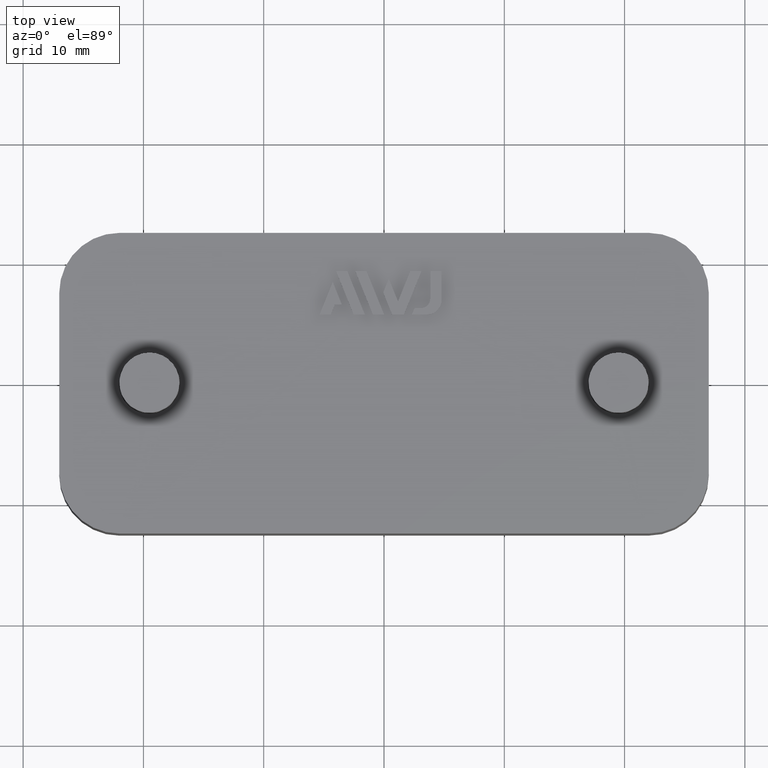
[diagram: clean part render]
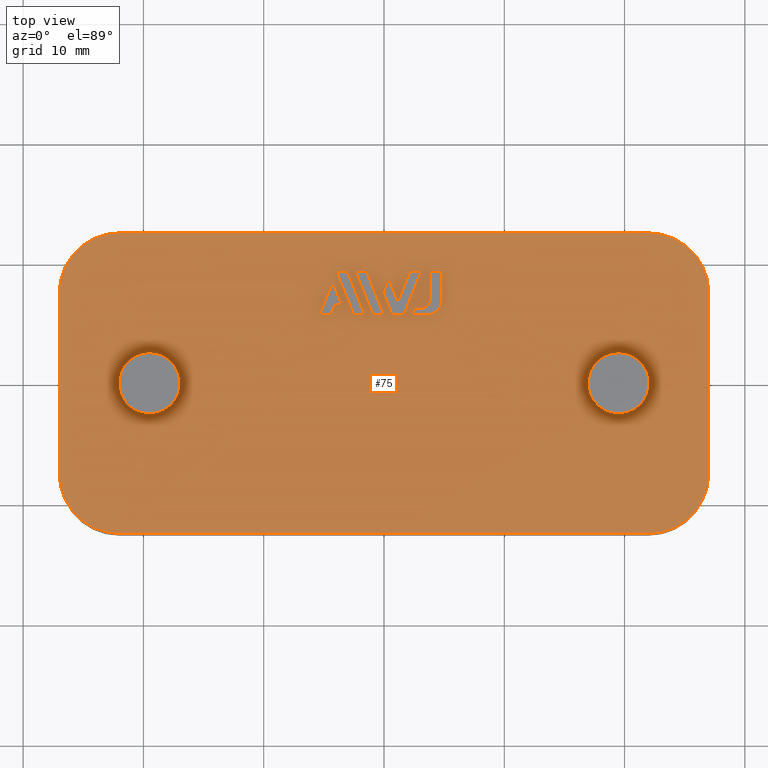
[diagram: same view with one face highlighted and labeled with its STEP entity id]
A machine part, top view. The second image highlights one B-rep face of the part: STEP entity #75.
In plain terms, the highlighted planar face has unit normal (0, -0, -1).
Its self-contained STEP definition (entity closure, byte-faithful):
#75 = ADVANCED_FACE( '', ( #378, #379, #380, #381, #382, #383, #384, #385 ), #386, .F. );
#378 = FACE_BOUND( '', #1030, .T. );
#379 = FACE_BOUND( '', #1031, .T. );
#380 = FACE_OUTER_BOUND( '', #1032, .T. );
#381 = FACE_BOUND( '', #1033, .T. );
#382 = FACE_BOUND( '', #1034, .T. );
#383 = FACE_BOUND( '', #1035, .T. );
#384 = FACE_BOUND( '', #1036, .T. );
#385 = FACE_BOUND( '', #1037, .T. );
#386 = PLANE( '', #1038 );
#1030 = EDGE_LOOP( '', ( #1682, #1683, #1684, #1685, #1686, #1687, #1688 ) );
#1031 = EDGE_LOOP( '', ( #1689, #1690, #1691, #1692 ) );
#1032 = EDGE_LOOP( '', ( #1693, #1694, #1695, #1696, #1697, #1698, #1699, #1700 ) );
#1033 = EDGE_LOOP( '', ( #1701 ) );
#1034 = EDGE_LOOP( '', ( #1702 ) );
#1035 = EDGE_LOOP( '', ( #1703, #1704, #1705, #1706, #1707 ) );
#1036 = EDGE_LOOP( '', ( #1708, #1709, #1710, #1711 ) );
#1037 = EDGE_LOOP( '', ( #1712, #1713, #1714, #1715, #1716, #1717, #1718, #1719 ) );
#1038 = AXIS2_PLACEMENT_3D( '', #1720, #1721, #1722 );
#1682 = ORIENTED_EDGE( '', *, *, #4108, .F. );
#1683 = ORIENTED_EDGE( '', *, *, #4109, .F. );
#1684 = ORIENTED_EDGE( '', *, *, #4110, .F. );
#1685 = ORIENTED_EDGE( '', *, *, #4111, .F. );
#1686 = ORIENTED_EDGE( '', *, *, #4112, .F. );
#1687 = ORIENTED_EDGE( '', *, *, #4113, .F. );
#1688 = ORIENTED_EDGE( '', *, *, #4114, .F. );
#1689 = ORIENTED_EDGE( '', *, *, #4115, .F. );
#1690 = ORIENTED_EDGE( '', *, *, #4116, .F. );
#1691 = ORIENTED_EDGE( '', *, *, #4117, .F. );
#1692 = ORIENTED_EDGE( '', *, *, #4118, .F. );
#1693 = ORIENTED_EDGE( '', *, *, #4119, .F. );
#1694 = ORIENTED_EDGE( '', *, *, #4120, .F. );
#1695 = ORIENTED_EDGE( '', *, *, #4121, .F. );
#1696 = ORIENTED_EDGE( '', *, *, #4122, .F. );
#1697 = ORIENTED_EDGE( '', *, *, #4123, .F. );
#1698 = ORIENTED_EDGE( '', *, *, #4124, .F. );
#1699 = ORIENTED_EDGE( '', *, *, #4125, .F. );
#1700 = ORIENTED_EDGE( '', *, *, #4126, .F. );
#1701 = ORIENTED_EDGE( '', *, *, #4127, .T. );
#1702 = ORIENTED_EDGE( '', *, *, #4128, .T. );
#1703 = ORIENTED_EDGE( '', *, *, #4129, .F. );
#1704 = ORIENTED_EDGE( '', *, *, #4130, .F. );
#1705 = ORIENTED_EDGE( '', *, *, #4131, .F. );
#1706 = ORIENTED_EDGE( '', *, *, #4132, .F. );
#1707 = ORIENTED_EDGE( '', *, *, #4133, .F. );
#1708 = ORIENTED_EDGE( '', *, *, #4134, .F. );
#1709 = ORIENTED_EDGE( '', *, *, #4135, .F. );
#1710 = ORIENTED_EDGE( '', *, *, #4136, .F. );
#1711 = ORIENTED_EDGE( '', *, *, #4137, .F. );
#1712 = ORIENTED_EDGE( '', *, *, #4138, .F. );
#1713 = ORIENTED_EDGE( '', *, *, #4139, .F. );
#1714 = ORIENTED_EDGE( '', *, *, #4140, .F. );
#1715 = ORIENTED_EDGE( '', *, *, #4141, .F. );
#1716 = ORIENTED_EDGE( '', *, *, #4142, .F. );
#1717 = ORIENTED_EDGE( '', *, *, #4143, .F. );
#1718 = ORIENTED_EDGE( '', *, *, #4144, .F. );
#1719 = ORIENTED_EDGE( '', *, *, #4145, .F. );
#1720 = CARTESIAN_POINT( '', ( 22.0000000000000, 7.50000000000001, 10.0000000000000 ) );
#1721 = DIRECTION( '', ( 2.61147382207352E-017, -6.12303176911189E-017, -1.00000000000000 ) );
#1722 = DIRECTION( '', ( 1.00000000000000, -6.42490176287706E-017, 2.61147382207352E-017 ) );
#4108 = EDGE_CURVE( '', #4868, #4869, #4870, .T. );
#4109 = EDGE_CURVE( '', #4871, #4868, #4872, .T. );
#4110 = EDGE_CURVE( '', #4873, #4871, #4874, .T. );
#4111 = EDGE_CURVE( '', #4875, #4873, #4876, .T. );
#4112 = EDGE_CURVE( '', #4877, #4875, #4878, .T. );
#4113 = EDGE_CURVE( '', #4879, #4877, #4880, .T. );
#4114 = EDGE_CURVE( '', #4869, #4879, #4881, .T. );
#4115 = EDGE_CURVE( '', #4882, #4883, #4884, .T. );
#4116 = EDGE_CURVE( '', #4885, #4882, #4886, .T. );
#4117 = EDGE_CURVE( '', #4887, #4885, #4888, .T. );
#4118 = EDGE_CURVE( '', #4883, #4887, #4889, .T. );
#4119 = EDGE_CURVE( '', #4890, #4891, #4892, .T. );
#4120 = EDGE_CURVE( '', #4893, #4890, #4894, .T. );
#4121 = EDGE_CURVE( '', #4895, #4893, #4896, .T. );
#4122 = EDGE_CURVE( '', #4897, #4895, #4898, .T. );
#4123 = EDGE_CURVE( '', #4899, #4897, #4900, .T. );
#4124 = EDGE_CURVE( '', #4901, #4899, #4902, .T. );
#4125 = EDGE_CURVE( '', #4903, #4901, #4904, .T. );
#4126 = EDGE_CURVE( '', #4891, #4903, #4905, .T. );
#4127 = EDGE_CURVE( '', #4906, #4906, #4907, .T. );
#4128 = EDGE_CURVE( '', #4908, #4908, #4909, .T. );
#4129 = EDGE_CURVE( '', #4910, #4911, #4912, .T. );
#4130 = EDGE_CURVE( '', #4913, #4910, #4914, .T. );
#4131 = EDGE_CURVE( '', #4915, #4913, #4916, .T. );
#4132 = EDGE_CURVE( '', #4917, #4915, #4918, .T. );
#4133 = EDGE_CURVE( '', #4911, #4917, #4919, .T. );
#4134 = EDGE_CURVE( '', #4920, #4921, #4922, .T. );
#4135 = EDGE_CURVE( '', #4923, #4920, #4924, .T. );
#4136 = EDGE_CURVE( '', #4925, #4923, #4926, .T. );
#4137 = EDGE_CURVE( '', #4921, #4925, #4927, .T. );
#4138 = EDGE_CURVE( '', #4928, #4929, #4930, .T. );
#4139 = EDGE_CURVE( '', #4931, #4928, #4932, .T. );
#4140 = EDGE_CURVE( '', #4933, #4931, #4934, .T. );
#4141 = EDGE_CURVE( '', #4935, #4933, #4936, .T. );
#4142 = EDGE_CURVE( '', #4937, #4935, #4938, .T. );
#4143 = EDGE_CURVE( '', #4939, #4937, #4940, .T. );
#4144 = EDGE_CURVE( '', #4941, #4939, #4942, .T. );
#4145 = EDGE_CURVE( '', #4929, #4941, #4943, .T. );
#4868 = VERTEX_POINT( '', #6136 );
#4869 = VERTEX_POINT( '', #6137 );
#4870 = LINE( '', #6138, #6139 );
#4871 = VERTEX_POINT( '', #6140 );
#4872 = LINE( '', #6141, #6142 );
#4873 = VERTEX_POINT( '', #6143 );
#4874 = LINE( '', #6144, #6145 );
#4875 = VERTEX_POINT( '', #6146 );
#4876 = LINE( '', #6147, #6148 );
#4877 = VERTEX_POINT( '', #6149 );
#4878 = LINE( '', #6150, #6151 );
#4879 = VERTEX_POINT( '', #6152 );
#4880 = LINE( '', #6153, #6154 );
#4881 = LINE( '', #6155, #6156 );
#4882 = VERTEX_POINT( '', #6157 );
#4883 = VERTEX_POINT( '', #6158 );
#4884 = LINE( '', #6159, #6160 );
#4885 = VERTEX_POINT( '', #6161 );
#4886 = LINE( '', #6162, #6163 );
#4887 = VERTEX_POINT( '', #6164 );
#4888 = LINE( '', #6165, #6166 );
#4889 = LINE( '', #6167, #6168 );
#4890 = VERTEX_POINT( '', #6169 );
#4891 = VERTEX_POINT( '', #6170 );
#4892 = CIRCLE( '', #6171, 4.99999999999999 );
#4893 = VERTEX_POINT( '', #6172 );
#4894 = LINE( '', #6173, #6174 );
#4895 = VERTEX_POINT( '', #6175 );
#4896 = CIRCLE( '', #6176, 5.00000000000000 );
#4897 = VERTEX_POINT( '', #6177 );
#4898 = LINE( '', #6178, #6179 );
#4899 = VERTEX_POINT( '', #6180 );
#4900 = CIRCLE( '', #6181, 5.00000000000000 );
#4901 = VERTEX_POINT( '', #6182 );
#4902 = LINE( '', #6183, #6184 );
#4903 = VERTEX_POINT( '', #6185 );
#4904 = CIRCLE( '', #6186, 4.99999999999999 );
#4905 = LINE( '', #6187, #6188 );
#4906 = VERTEX_POINT( '', #6189 );
#4907 = CIRCLE( '', #6190, 2.54363766232054 );
#4908 = VERTEX_POINT( '', #6191 );
#4909 = CIRCLE( '', #6192, 2.54363766232055 );
#4910 = VERTEX_POINT( '', #6193 );
#4911 = VERTEX_POINT( '', #6194 );
#4912 = LINE( '', #6195, #6196 );
#4913 = VERTEX_POINT( '', #6197 );
#4914 = LINE( '', #6198, #6199 );
#4915 = VERTEX_POINT( '', #6200 );
#4916 = LINE( '', #6201, #6202 );
#4917 = VERTEX_POINT( '', #6203 );
#4918 = LINE( '', #6204, #6205 );
#4919 = LINE( '', #6206, #6207 );
#4920 = VERTEX_POINT( '', #6208 );
#4921 = VERTEX_POINT( '', #6209 );
#4922 = LINE( '', #6210, #6211 );
#4923 = VERTEX_POINT( '', #6212 );
#4924 = LINE( '', #6213, #6214 );
#4925 = VERTEX_POINT( '', #6215 );
#4926 = LINE( '', #6216, #6217 );
#4927 = LINE( '', #6218, #6219 );
#4928 = VERTEX_POINT( '', #6220 );
#4929 = VERTEX_POINT( '', #6221 );
#4930 = CIRCLE( '', #6222, 1.20000000000000 );
#4931 = VERTEX_POINT( '', #6223 );
#4932 = LINE( '', #6224, #6225 );
#4933 = VERTEX_POINT( '', #6226 );
#4934 = LINE( '', #6227, #6228 );
#4935 = VERTEX_POINT( '', #6229 );
#4936 = LINE( '', #6230, #6231 );
#4937 = VERTEX_POINT( '', #6232 );
#4938 = CIRCLE( '', #6233, 0.799999999999999 );
#4939 = VERTEX_POINT( '', #6234 );
#4940 = LINE( '', #6235, #6236 );
#4941 = VERTEX_POINT( '', #6237 );
#4942 = LINE( '', #6238, #6239 );
#4943 = LINE( '', #6240, #6241 );
#6136 = CARTESIAN_POINT( '', ( 1.65153815900078, 5.70000000000002, 9.99999999999998 ) );
#6137 = CARTESIAN_POINT( '', ( 3.10489558569051, 9.29736617046472, 9.99999999999997 ) );
#6138 = CARTESIAN_POINT( '', ( 1.65153815900078, 5.70000000000002, 9.99999999999998 ) );
#6139 = VECTOR( '', #8148, 1000.00000000000 );
#6140 = CARTESIAN_POINT( '', ( 0.668868987414745, 5.70000000000002, 9.99999999999999 ) );
#6141 = CARTESIAN_POINT( '', ( 0.668868987414744, 5.70000000000002, 9.99999999999999 ) );
#6142 = VECTOR( '', #8149, 1000.00000000000 );
#6143 = CARTESIAN_POINT( '', ( -0.0717422425350299, 7.53275704409054, 9.99999999999999 ) );
#6144 = CARTESIAN_POINT( '', ( -0.0717422425350316, 7.53275704409054, 9.99999999999999 ) );
#6145 = VECTOR( '', #8150, 1000.00000000000 );
#6146 = CARTESIAN_POINT( '', ( 0.393055647481169, 8.68337374758958, 9.99999999999999 ) );
#6147 = CARTESIAN_POINT( '', ( 0.393055647481170, 8.68337374758958, 9.99999999999999 ) );
#6148 = VECTOR( '', #8151, 1000.00000000000 );
#6149 = CARTESIAN_POINT( '', ( 1.16010139340522, 6.78495716450337, 9.99999999999998 ) );
#6150 = CARTESIAN_POINT( '', ( 1.16010139340522, 6.78495716450338, 9.99999999999999 ) );
#6151 = VECTOR( '', #8152, 1000.00000000000 );
#6152 = CARTESIAN_POINT( '', ( 2.17529980565812, 9.29736617046472, 9.99999999999997 ) );
#6153 = CARTESIAN_POINT( '', ( 2.17529980565812, 9.29736617046472, 9.99999999999998 ) );
#6154 = VECTOR( '', #8153, 1000.00000000000 );
#6155 = CARTESIAN_POINT( '', ( 3.10489558569051, 9.29736617046472, 9.99999999999997 ) );
#6156 = VECTOR( '', #8154, 1000.00000000000 );
#6157 = CARTESIAN_POINT( '', ( -1.59847678860040, 5.70000000000002, 9.99999999999999 ) );
#6158 = CARTESIAN_POINT( '', ( -3.05206261720169, 9.29736617046472, 10.0000000000000 ) );
#6159 = CARTESIAN_POINT( '', ( -1.59847678860040, 5.70000000000002, 9.99999999999999 ) );
#6160 = VECTOR( '', #8155, 1000.00000000000 );
#6161 = CARTESIAN_POINT( '', ( -2.52799443113674, 5.70000000000002, 10.0000000000000 ) );
#6162 = CARTESIAN_POINT( '', ( -2.52799443113674, 5.70000000000002, 9.99999999999999 ) );
#6163 = VECTOR( '', #8156, 1000.00000000000 );
#6164 = CARTESIAN_POINT( '', ( -3.98137590013295, 9.29736617046472, 10.0000000000000 ) );
#6165 = CARTESIAN_POINT( '', ( -3.98137590013295, 9.29736617046472, 10.0000000000000 ) );
#6166 = VECTOR( '', #8157, 1000.00000000000 );
#6167 = CARTESIAN_POINT( '', ( -3.05206261720169, 9.29736617046472, 10.0000000000000 ) );
#6168 = VECTOR( '', #8158, 1000.00000000000 );
#6169 = CARTESIAN_POINT( '', ( 22.0000000000000, 12.5000000000000, 10.0000000000000 ) );
#6170 = CARTESIAN_POINT( '', ( 27.0000000000000, 7.49999999999999, 10.0000000000000 ) );
#6171 = AXIS2_PLACEMENT_3D( '', #8159, #8160, #8161 );
#6172 = CARTESIAN_POINT( '', ( -22.0000000000000, 12.5000000000000, 10.0000000000000 ) );
#6173 = CARTESIAN_POINT( '', ( -22.0000000000000, 12.5000000000000, 10.0000000000000 ) );
#6174 = VECTOR( '', #8162, 1000.00000000000 );
#6175 = CARTESIAN_POINT( '', ( -27.0000000000000, 7.50000000000000, 10.0000000000000 ) );
#6176 = AXIS2_PLACEMENT_3D( '', #8163, #8164, #8165 );
#6177 = CARTESIAN_POINT( '', ( -27.0000000000000, -7.50000000000000, 10.0000000000000 ) );
#6178 = CARTESIAN_POINT( '', ( -27.0000000000000, -7.50000000000002, 10.0000000000000 ) );
#6179 = VECTOR( '', #8166, 1000.00000000000 );
#6180 = CARTESIAN_POINT( '', ( -22.0000000000000, -12.5000000000000, 10.0000000000000 ) );
#6181 = AXIS2_PLACEMENT_3D( '', #8167, #8168, #8169 );
#6182 = CARTESIAN_POINT( '', ( 22.0000000000000, -12.5000000000000, 10.0000000000000 ) );
#6183 = CARTESIAN_POINT( '', ( 22.0000000000000, -12.5000000000000, 10.0000000000000 ) );
#6184 = VECTOR( '', #8170, 1000.00000000000 );
#6185 = CARTESIAN_POINT( '', ( 27.0000000000000, -7.50000000000001, 10.0000000000000 ) );
#6186 = AXIS2_PLACEMENT_3D( '', #8171, #8172, #8173 );
#6187 = CARTESIAN_POINT( '', ( 27.0000000000000, 7.49999999999999, 10.0000000000000 ) );
#6188 = VECTOR( '', #8174, 1000.00000000000 );
#6189 = CARTESIAN_POINT( '', ( -19.5000000000000, 2.54363766232054, 10.0000000000000 ) );
#6190 = AXIS2_PLACEMENT_3D( '', #8175, #8176, #8177 );
#6191 = CARTESIAN_POINT( '', ( 19.5000000000000, 2.54363766232055, 10.0000000000000 ) );
#6192 = AXIS2_PLACEMENT_3D( '', #8178, #8179, #8180 );
#6193 = CARTESIAN_POINT( '', ( -4.42597825270631, 5.70000000000002, 10.0000000000000 ) );
#6194 = CARTESIAN_POINT( '', ( -4.09004712542058, 6.53085402732085, 10.0000000000000 ) );
#6195 = CARTESIAN_POINT( '', ( -4.42597825270631, 5.70000000000002, 10.0000000000000 ) );
#6196 = VECTOR( '', #8181, 1000.00000000000 );
#6197 = CARTESIAN_POINT( '', ( -5.35529153563757, 5.70000000000002, 10.0000000000000 ) );
#6198 = CARTESIAN_POINT( '', ( -5.35529153563757, 5.70000000000002, 10.0000000000000 ) );
#6199 = VECTOR( '', #8182, 1000.00000000000 );
#6200 = CARTESIAN_POINT( '', ( -4.26568819540705, 8.39721019471655, 10.0000000000000 ) );
#6201 = CARTESIAN_POINT( '', ( -4.26568819540705, 8.39721019471655, 10.0000000000000 ) );
#6202 = VECTOR( '', #8183, 1000.00000000000 );
#6203 = CARTESIAN_POINT( '', ( -3.51197991900253, 6.53085402732085, 10.0000000000000 ) );
#6204 = CARTESIAN_POINT( '', ( -3.51197991900253, 6.53085402732085, 10.0000000000000 ) );
#6205 = VECTOR( '', #8184, 1000.00000000000 );
#6206 = CARTESIAN_POINT( '', ( -4.09004712542058, 6.53085402732085, 10.0000000000000 ) );
#6207 = VECTOR( '', #8185, 1000.00000000000 );
#6208 = CARTESIAN_POINT( '', ( -1.04083408558608E-014, 5.70000000000002, 9.99999999999999 ) );
#6209 = CARTESIAN_POINT( '', ( -1.45358582860130, 9.29736617046472, 10.0000000000000 ) );
#6210 = CARTESIAN_POINT( '', ( -1.04083408558608E-014, 5.70000000000002, 9.99999999999999 ) );
#6211 = VECTOR( '', #8186, 1000.00000000000 );
#6212 = CARTESIAN_POINT( '', ( -0.929583758879166, 5.70000000000002, 9.99999999999999 ) );
#6213 = CARTESIAN_POINT( '', ( -0.929583758879167, 5.70000000000002, 9.99999999999999 ) );
#6214 = VECTOR( '', #8187, 1000.00000000000 );
#6215 = CARTESIAN_POINT( '', ( -2.38316958748045, 9.29736617046472, 10.0000000000000 ) );
#6216 = CARTESIAN_POINT( '', ( -2.38316958748045, 9.29736617046472, 10.0000000000000 ) );
#6217 = VECTOR( '', #8188, 1000.00000000000 );
#6218 = CARTESIAN_POINT( '', ( -1.45358582860130, 9.29736617046472, 10.0000000000000 ) );
#6219 = VECTOR( '', #8189, 1000.00000000000 );
#6220 = CARTESIAN_POINT( '', ( 3.58288028181883, 5.70000000000002, 9.99999999999997 ) );
#6221 = CARTESIAN_POINT( '', ( 4.78288028181883, 6.90000000000003, 9.99999999999997 ) );
#6222 = AXIS2_PLACEMENT_3D( '', #8190, #8191, #8192 );
#6223 = CARTESIAN_POINT( '', ( 2.32040714641553, 5.70000000000003, 9.99999999999998 ) );
#6224 = CARTESIAN_POINT( '', ( 2.32040714641553, 5.70000000000002, 9.99999999999998 ) );
#6225 = VECTOR( '', #8193, 1000.00000000000 );
#6226 = CARTESIAN_POINT( '', ( 2.53176335265060, 6.22312496744037, 9.99999999999998 ) );
#6227 = CARTESIAN_POINT( '', ( 2.53176335265060, 6.22312496744038, 9.99999999999998 ) );
#6228 = VECTOR( '', #8194, 1000.00000000000 );
#6229 = CARTESIAN_POINT( '', ( 3.04274195062396, 6.22312496744037, 9.99999999999998 ) );
#6230 = CARTESIAN_POINT( '', ( 3.04274195062396, 6.22312496744037, 9.99999999999998 ) );
#6231 = VECTOR( '', #8195, 1000.00000000000 );
#6232 = CARTESIAN_POINT( '', ( 3.84274195062396, 7.02312496744037, 9.99999999999997 ) );
#6233 = AXIS2_PLACEMENT_3D( '', #8196, #8197, #8198 );
#6234 = CARTESIAN_POINT( '', ( 3.84274195062396, 9.29736617046472, 9.99999999999998 ) );
#6235 = CARTESIAN_POINT( '', ( 3.84274195062396, 9.29736617046472, 9.99999999999997 ) );
#6236 = VECTOR( '', #8199, 1000.00000000000 );
#6237 = CARTESIAN_POINT( '', ( 4.78288028181883, 9.29736617046472, 9.99999999999997 ) );
#6238 = CARTESIAN_POINT( '', ( 4.78288028181883, 9.29736617046472, 9.99999999999997 ) );
#6239 = VECTOR( '', #8200, 1000.00000000000 );
#6240 = CARTESIAN_POINT( '', ( 4.78288028181883, 6.90000000000003, 9.99999999999997 ) );
#6241 = VECTOR( '', #8201, 1000.00000000000 );
#8148 = DIRECTION( '', ( 0.374590451773198, 0.927190376050330, 8.29390871736282E-016 ) );
#8149 = DIRECTION( '', ( 1.00000000000000, -2.27738354346373E-031, -3.71937241115124E-015 ) );
#8150 = DIRECTION( '', ( 0.374662832411421, -0.927161130553612, -3.61607275949142E-015 ) );
#8151 = DIRECTION( '', ( -0.374550179126525, -0.927206645422846, -8.29579661146845E-016 ) );
#8152 = DIRECTION( '', ( -0.374621565025663, 0.927177805503196, 3.61595924339183E-015 ) );
#8153 = DIRECTION( '', ( -0.374644435760503, -0.927168564368796, -8.29137798890870E-016 ) );
#8154 = DIRECTION( '', ( -1.00000000000000, 2.79533177046626E-031, 3.71937241115124E-015 ) );
#8155 = DIRECTION( '', ( -0.374641058409019, 0.927169929060563, 3.61601286537797E-015 ) );
#8156 = DIRECTION( '', ( 1.00000000000000, -2.79537531044408E-031, -3.71937241115124E-015 ) );
#8157 = DIRECTION( '', ( 0.374595778945159, -0.927188223823227, -3.61588830983189E-015 ) );
#8158 = DIRECTION( '', ( -1.00000000000000, 2.27738354346373E-031, 3.71937241115124E-015 ) );
#8159 = CARTESIAN_POINT( '', ( 22.0000000000000, 7.50000000000001, 10.0000000000000 ) );
#8160 = DIRECTION( '', ( 2.61147382207352E-017, -6.12303176911189E-017, -1.00000000000000 ) );
#8161 = DIRECTION( '', ( 6.42490176287707E-017, 1.00000000000000, -6.12303176911189E-017 ) );
#8162 = DIRECTION( '', ( 1.00000000000000, 1.23259516440783E-032, -3.08148791101958E-033 ) );
#8163 = CARTESIAN_POINT( '', ( -22.0000000000000, 7.50000000000000, 10.0000000000000 ) );
#8164 = DIRECTION( '', ( 2.61147382207352E-017, -6.12303176911189E-017, -1.00000000000000 ) );
#8165 = DIRECTION( '', ( 6.42490176287706E-017, 1.00000000000000, -6.12303176911189E-017 ) );
#8166 = DIRECTION( '', ( 6.42490176287706E-017, 1.00000000000000, -6.12303176911189E-017 ) );
#8167 = CARTESIAN_POINT( '', ( -22.0000000000000, -7.49999999999999, 10.0000000000000 ) );
#8168 = DIRECTION( '', ( 2.61147382207352E-017, -6.12303176911189E-017, -1.00000000000000 ) );
#8169 = DIRECTION( '', ( 6.42490176287706E-017, 1.00000000000000, -6.12303176911189E-017 ) );
#8170 = DIRECTION( '', ( -1.00000000000000, 1.88680483753071E-049, 3.08148791101958E-033 ) );
#8171 = CARTESIAN_POINT( '', ( 22.0000000000000, -7.50000000000001, 10.0000000000000 ) );
#8172 = DIRECTION( '', ( 2.61147382207352E-017, -6.12303176911189E-017, -1.00000000000000 ) );
#8173 = DIRECTION( '', ( 6.42490176287707E-017, 1.00000000000000, -6.12303176911189E-017 ) );
#8174 = DIRECTION( '', ( -6.42490176287706E-017, -1.00000000000000, 6.12303176911189E-017 ) );
#8175 = CARTESIAN_POINT( '', ( -19.5000000000000, -9.59789973192793E-016, 10.0000000000000 ) );
#8176 = DIRECTION( '', ( 0.000000000000000, -6.12303176911189E-017, -1.00000000000000 ) );
#8177 = DIRECTION( '', ( 0.000000000000000, 1.00000000000000, -6.12303176911189E-017 ) );
#8178 = CARTESIAN_POINT( '', ( 19.5000000000000, 2.72649741325792E-015, 10.0000000000000 ) );
#8179 = DIRECTION( '', ( 0.000000000000000, -6.12303176911189E-017, -1.00000000000000 ) );
#8180 = DIRECTION( '', ( 0.000000000000000, 1.00000000000000, -6.12303176911189E-017 ) );
#8181 = DIRECTION( '', ( 0.374840934415179, 0.927089140205383, 8.28216554053157E-016 ) );
#8182 = DIRECTION( '', ( 1.00000000000000, 5.55111512312576E-017, -3.71937241115124E-015 ) );
#8183 = DIRECTION( '', ( -0.374565126786346, -0.927200607094025, -8.29509590337091E-016 ) );
#8184 = DIRECTION( '', ( -0.374457717202846, 0.927243990558706, 3.61550848910027E-015 ) );
#8185 = DIRECTION( '', ( 1.00000000000000, -2.69384246100057E-031, -3.71937241115124E-015 ) );
#8186 = DIRECTION( '', ( -0.374641058409019, 0.927169929060563, 3.61601286537797E-015 ) );
#8187 = DIRECTION( '', ( 1.00000000000000, -2.22044604925032E-016, -3.71937241115124E-015 ) );
#8188 = DIRECTION( '', ( 0.374641058409020, -0.927169929060563, -3.61601286537797E-015 ) );
#8189 = DIRECTION( '', ( -1.00000000000000, 2.22044604925032E-016, 3.71937241115124E-015 ) );
#8190 = CARTESIAN_POINT( '', ( 3.58288028181883, 6.90000000000002, 9.99999999999997 ) );
#8191 = DIRECTION( '', ( 4.86561966779450E-046, -5.72118126889824E-015, 1.00000000000000 ) );
#8192 = DIRECTION( '', ( -7.22801448323669E-016, -1.00000000000000, -5.72118126889823E-015 ) );
#8193 = DIRECTION( '', ( 1.00000000000000, -1.89600316189783E-031, -3.71937241115124E-015 ) );
#8194 = DIRECTION( '', ( -0.374606593415912, -0.927183854566787, -8.29315201855852E-016 ) );
#8195 = DIRECTION( '', ( -1.00000000000000, 2.74852116841169E-031, 3.71937241115124E-015 ) );
#8196 = CARTESIAN_POINT( '', ( 3.04274195062396, 7.02312496744037, 9.99999999999999 ) );
#8197 = DIRECTION( '', ( -2.60208521396521E-014, 8.61238706219290E-015, -1.00000000000000 ) );
#8198 = DIRECTION( '', ( 1.00000000000000, -1.59326504310453E-030, -2.60208521396521E-014 ) );
#8199 = DIRECTION( '', ( -6.07153216591974E-017, -1.00000000000000, -2.39716925558505E-015 ) );
#8200 = DIRECTION( '', ( -1.00000000000000, 3.30166363102248E-031, 3.71937241115124E-015 ) );
#8201 = DIRECTION( '', ( 6.07153216591974E-017, 1.00000000000000, 2.39716925558505E-015 ) );